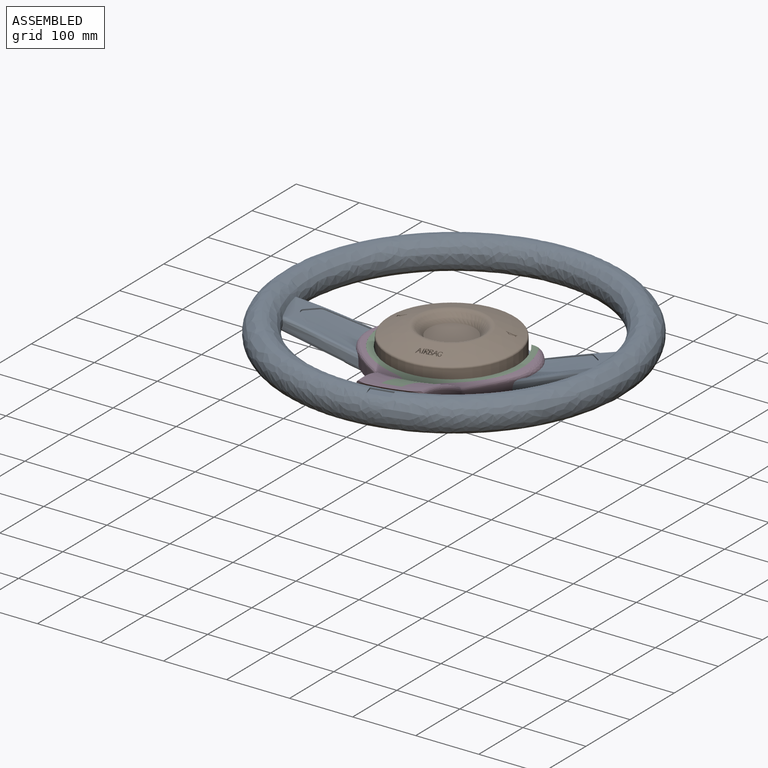
[diagram: assembled view]
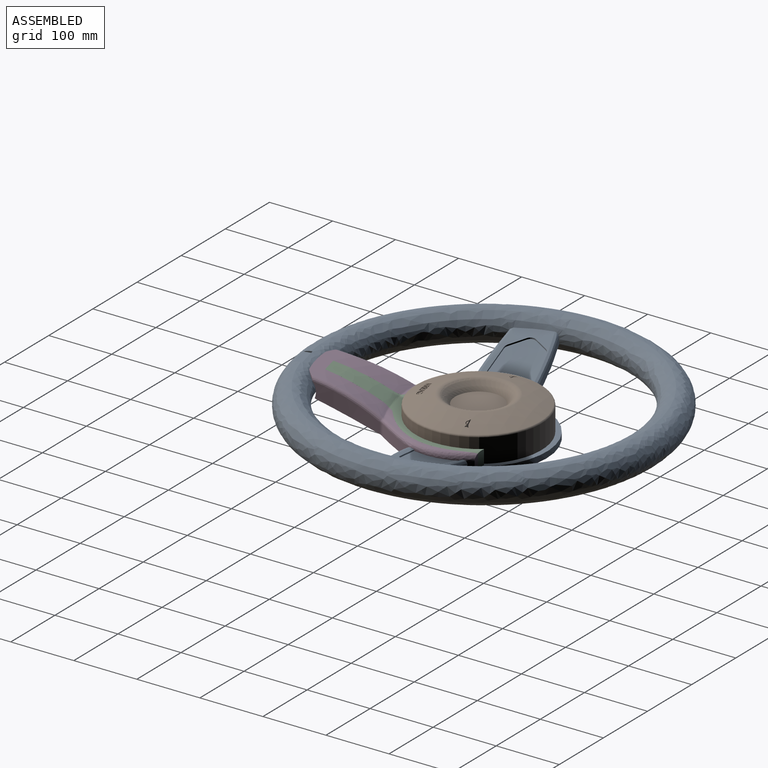
[diagram: assembled view, second angle]
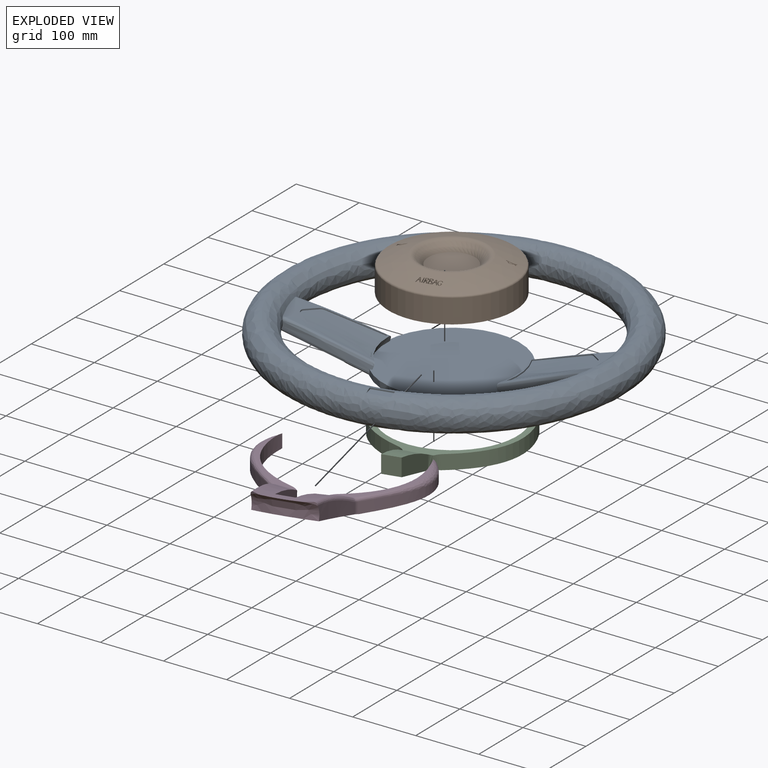
[diagram: exploded view]
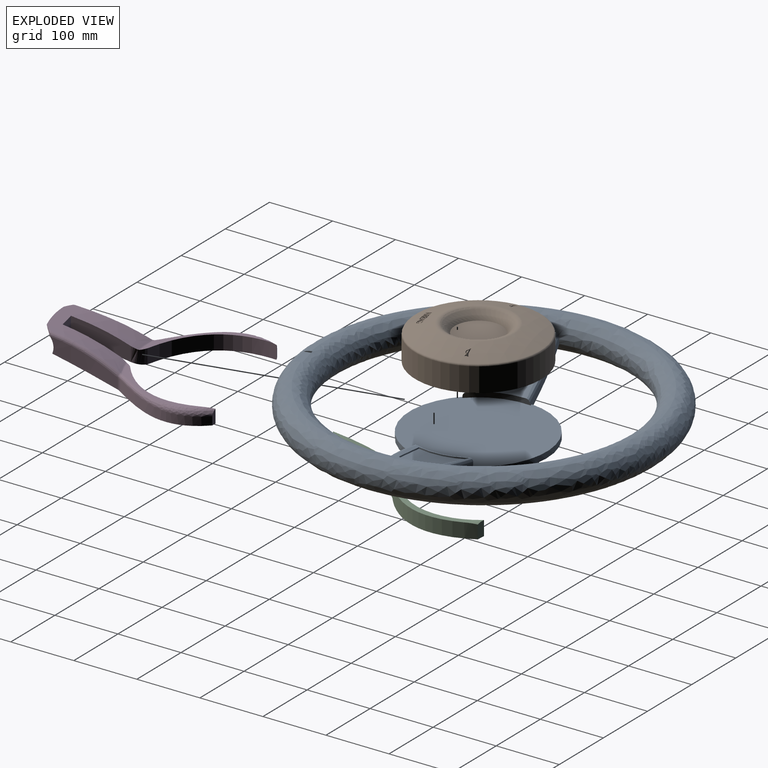
[diagram: exploded view, second angle]
ASSEMBLY  parts=4 mates=3
PART A: 53 faces, bbox 1106.1x606.1x87.3 mm
  f0: bspline ~120.94x81.5mm, area 6432.6mm2, adj f7,f8,f9,f10,f11,f12,f13,f14
  f1: bspline ~153.55x109.77mm, area 5.2mm2, adj f2,f3,f18
  f2: bspline ~0.85x0.5mm, area 0.1mm2, adj f1,f3,f18
  f3: bspline ~56.19x19.31mm, area 1.5mm2, adj f1,f2,f18
  f4: bspline ~56.19x19.31mm, area 1.5mm2, adj f5,f6,f18
  f5: bspline ~0.85x0.5mm, area 0.1mm2, adj f4,f6,f18
  f6: bspline ~153.55x109.77mm, area 5.2mm2, adj f4,f5,f18
  f7: cylinder r=10mm len=7.23mm, axis (0,0,1), area 17.9mm2, adj f0,f8,f14,f24
  f8: plane 22.02x16.81mm, normal (-0.81,-0.59,0), area 50.1mm2, adj f0,f7,f9,f24
  f9: cylinder r=10mm len=12.83mm, axis (0,0,1), area 29.1mm2, adj f0,f8,f10,f24
  f10: plane 19.81x19.09mm, normal (-0.72,0.69,0), area 54.7mm2, adj f0,f9,f11,f24
  f11: cylinder r=10mm len=6.33mm, axis (0,0,1), area 14.9mm2, adj f0,f10,f12,f24
  f12: plane 87.48x29.07mm, normal (-0.09,1,0), area 181.7mm2, adj f0,f11,f13,f24
  f13: cylinder r=105mm len=72.89mm, axis (0,0,1), area 158.9mm2, adj f0,f12,f14,f23,f24
  f14: plane 88.31x32.03mm, normal (-0.08,-1,0), area 147.7mm2, adj f0,f7,f13,f23,f24
  f15: plane 13.99x3.38mm, normal (-1,0,0), area 22.4mm2, adj f27,f29,f41,f42
  f16: bspline ~120.94x81.5mm, area 6432.6mm2, adj f30,f31,f32,f33,f34,f35,f36,f37
  f17: bspline ~93.66x23.75mm, area 905.6mm2, adj f22,f23,f24,f25,f26,f39
  f18: plane 217.35x217.35mm, normal (0,0,-1), area 37049.6mm2, adj f1,f2,f3,f4,f5,f6,f40
  f19: bspline ~134.81x42.09mm, area 1059.9mm2, adj f20,f26,f40,f42
  f20: bspline ~153.55x109.77mm, area 8973.5mm2, adj f19,f21,f40,f42
  f21: bspline ~127.15x42.91mm, area 1015.2mm2, adj f20,f22,f40,f42
  f22: bspline ~139.2x59.15mm, area 1299mm2, adj f17,f21,f23,f39,f40,f42
  f23: bspline ~131.18x43.36mm, area 1030.9mm2, adj f13,f14,f17,f22,f24,f42
  f24: bspline ~153.73x100.84mm, area 2756.7mm2, adj f7,f8,f9,f10,f11,f12,f13,f14
  f25: bspline ~139.18x42.58mm, area 1079.7mm2, adj f17,f24,f26,f42
  f26: bspline ~153.52x59.09mm, area 1354.4mm2, adj f17,f19,f25,f39,f40,f42
  f27: plane 35.29x13.87mm, normal (0,0,1), area 468.5mm2, adj f15,f28,f29,f41,f43
  f28: plane 13.92x3.3mm, normal (1,0,0), area 22.4mm2, adj f27,f41,f43,f52
  f29: bspline ~548.72x263.49mm, area 66463mm2, adj f15,f27,f42,f43
  f30: plane 22.02x16.81mm, normal (0.81,-0.59,0), area 49.9mm2, adj f16,f31,f36,f48
  f31: cylinder r=10mm len=12.83mm, axis (0,0,1), area 29.1mm2, adj f16,f30,f32,f48
  f32: plane 19.81x19.09mm, normal (0.72,0.69,0), area 54.7mm2, adj f16,f31,f33,f48
  f33: cylinder r=10mm len=6.33mm, axis (0,0,1), area 14.9mm2, adj f16,f32,f34,f48
  f34: plane 87.48x29.07mm, normal (0.09,1,0), area 181.8mm2, adj f16,f33,f35,f48
  f35: cylinder r=105mm len=72.89mm, axis (0,0,1), area 157.2mm2, adj f16,f34,f37,f48,f49
  f36: cylinder r=10mm len=7.23mm, axis (0,0,1), area 17.9mm2, adj f16,f30,f37,f48
  f37: plane 88.31x32.02mm, normal (0.08,-1,0), area 221mm2, adj f16,f35,f36,f48,f49
  f38: bspline ~93.66x23.75mm, area 905.6mm2, adj f39,f46,f47,f48,f49,f50
  f39: plane 217.43x210.32mm, normal (0,0,1), area 36376.6mm2, adj f17,f22,f26,f38,f40,f46,f50
  f40: cylinder r=108.61mm len=217.23mm, axis (0,0,1), area 4705.1mm2, adj f18,f19,f20,f21,f22,f26,f39,f44
  f41: plane 35.98x3.26mm, normal (0,-1,0), area 78.2mm2, adj f15,f27,f28,f42,f52
  f42: bspline ~500.17x500.17mm, area 57110mm2, adj f15,f19,f20,f21,f22,f23,f24,f25
  f43: bspline ~601.67x601.67mm, area 66461.2mm2, adj f27,f28,f29,f52
  f44: bspline ~153.55x109.77mm, area 8973.5mm2, adj f40,f45,f51,f52
  f45: bspline ~131.99x41.43mm, area 1059.9mm2, adj f40,f44,f46,f52
  f46: bspline ~153.52x59.09mm, area 1354.4mm2, adj f38,f39,f40,f45,f47,f52
  f47: bspline ~139.18x42.58mm, area 1079.7mm2, adj f38,f46,f48,f52
  f48: bspline ~153.73x100.84mm, area 2756.7mm2, adj f30,f31,f32,f33,f34,f35,f36,f37
  f49: bspline ~132.75x44.13mm, area 1030.9mm2, adj f35,f37,f38,f48,f50,f52
  f50: bspline ~128.87x47.4mm, area 1300.1mm2, adj f38,f39,f40,f49,f51,f52
  f51: bspline ~127.15x42.91mm, area 1015.2mm2, adj f40,f44,f50,f52
  f52: bspline ~500.17x500.17mm, area 57109.6mm2, adj f28,f41,f42,f43,f44,f45,f46,f47
PART B: 112 faces, bbox 216.5x216.5x60 mm
  f0: torus R=97mm, axis (0,0,-1), area 2216.8mm2, adj f6,f7
  f1: cylinder r=1mm len=8.06mm, axis (0,0,1), area 9.6mm2, adj f7,f52,f53,f56
  f2: cylinder r=1mm len=9.5mm, axis (0,0,1), area 14.6mm2, adj f7,f50,f51,f56
  f3: cylinder r=1mm len=9.5mm, axis (0,0,1), area 14.6mm2, adj f42,f44,f45,f48
  f4: torus R=54.58mm, axis (0,0,1), area 3014.8mm2, adj f5,f7
  f5: bspline ~95.43x95.35mm, area 4308.1mm2, adj f4,f9
  f6: cylinder r=100mm len=200mm, axis (0,0,1), area 23870.8mm2, adj f0,f8
  f7: sphere r=260mm, area 20865.3mm2, adj f0,f1,f2,f4,f10,f11,f12,f13
  f8: plane 200x200mm, normal (0,0,-1), area 31415.9mm2, adj f6
  f9: plane 74x74mm, normal (0,0,1), area 4300.8mm2, adj f5
  f10: plane 6.45x1.27mm, normal (0,1,0), area 8.1mm2, adj f7,f11,f17,f18
  f11: plane 9.51x9.51mm, normal (0.95,-0.31,0), area 79.6mm2, adj f7,f10,f12,f18
  f12: plane 9.58x1.57mm, normal (0,-1,0), area 14.9mm2, adj f7,f11,f13,f18
  f13: plane 9.59x9.5mm, normal (-0.95,-0.31,0), area 82.4mm2, adj f7,f12,f14,f18
  f14: plane 6.83x1.27mm, normal (0,1,0), area 8.6mm2, adj f7,f13,f15,f18
  f15: plane 7.82x3.52mm, normal (0.93,0.38,0), area 27.7mm2, adj f7,f14,f16,f18
  f16: plane 7.82x2.42mm, normal (0,1,0), area 18.8mm2, adj f7,f15,f17,f18
  f17: plane 7.67x3.52mm, normal (-0.93,0.38,0), area 26.8mm2, adj f7,f10,f16,f18
  f18: plane 9.5x7.83mm, normal (0,0,1), area 29.1mm2, adj f10,f11,f12,f13,f14,f15,f16,f17
  f19: plane 9.03x2.51mm, normal (0.95,0.3,0), area 22.8mm2, adj f18,f20,f21,f22
  f20: plane 8.32x1.57mm, normal (0,-1,0), area 13mm2, adj f18,f19,f21,f22
  f21: plane 9.03x2.51mm, normal (-0.95,0.3,0), area 22.7mm2, adj f18,f19,f20,f22
  f22: sphere r=260mm, area 2.1mm2, adj f19,f20,f21
  f23: plane 9.83x1.3mm, normal (0,-1,0), area 12.8mm2, adj f7,f24,f26,f27
  f24: plane 9.83x9.5mm, normal (-1,0,0), area 79.8mm2, adj f7,f23,f25,f27
  f25: plane 6.91x1.3mm, normal (0,1,0), area 9mm2, adj f7,f24,f26,f27
  f26: plane 9.78x9.5mm, normal (1,0,0), area 79.4mm2, adj f7,f23,f25,f27
  f27: plane 9.5x1.3mm, normal (0,0,1), area 12.4mm2, adj f23,f24,f25,f26
  f28: plane 9.96x3.73mm, normal (0,-1,0), area 37mm2, adj f7,f29,f41,f42
  f29: plane 9.96x1.46mm, normal (-0.71,-0.71,0), area 20.2mm2, adj f7,f28,f30,f42
  f30: cylinder r=1mm len=9.55mm, axis (0,0,1), area 7.4mm2, adj f7,f29,f31,f42
  f31: plane 9.34x0.39mm, normal (-1,0,0), area 3.6mm2, adj f7,f30,f32,f42
  f32: cylinder r=1mm len=9.23mm, axis (0,0,1), area 10.1mm2, adj f7,f31,f33,f42
  f33: plane 8.96x1.65mm, normal (-0.44,0.9,0), area 16.2mm2, adj f7,f32,f34,f42
  f34: plane 8.69x4.51mm, normal (-0.9,-0.44,0), area 40.1mm2, adj f7,f33,f35,f42
  f35: plane 7.3x1.17mm, normal (-1,0,0), area 8.3mm2, adj f7,f34,f36,f42
  f36: plane 6.92x1.43mm, normal (0,1,0), area 9.9mm2, adj f7,f35,f37,f42
  f37: plane 7.86x3.02mm, normal (0.91,0.41,0), area 24.5mm2, adj f7,f36,f38,f42
  f38: plane 7.86x1.53mm, normal (0,1,0), area 12mm2, adj f7,f37,f39,f42
  f39: plane 7.82x2.97mm, normal (-1,0,0), area 21.8mm2, adj f7,f38,f40,f42
  f40: plane 6.86x1.16mm, normal (0,1,0), area 8mm2, adj f7,f39,f41,f42
  f41: plane 9.89x9.88mm, normal (1,0,0), area 82.9mm2, adj f7,f28,f40,f42
  f42: plane 9.93x5.48mm, normal (0,0,1), area 35.4mm2, adj f3,f28,f29,f30,f31,f32,f33,f34
  f43: plane 9.56x2.11mm, normal (0,1,0), area 20.2mm2, adj f42,f44,f47,f48
  f44: plane 9.56x0.22mm, normal (0.71,0.71,0), area 2.9mm2, adj f3,f42,f43,f48
  f45: plane 9.08x0.22mm, normal (0.71,-0.71,0), area 2.8mm2, adj f3,f42,f46,f48
  f46: plane 9.02x2.11mm, normal (0,-1,0), area 19mm2, adj f42,f45,f47,f48
  f47: plane 9.52x1.85mm, normal (-1,0,0), area 17.1mm2, adj f42,f43,f46,f48
  f48: sphere r=260mm, area 4.7mm2, adj f3,f43,f44,f45,f46,f47
  f49: plane 9.98x3.72mm, normal (0,-1,0), area 37.1mm2, adj f7,f50,f55,f56
  f50: plane 9.97x1.55mm, normal (-0.71,-0.71,0), area 21.4mm2, adj f2,f7,f49,f56
  f51: plane 9.08x1.55mm, normal (-0.71,0.71,0), area 19.4mm2, adj f2,f7,f52,f56
  f52: plane 8.63x1.77mm, normal (-0.71,-0.71,0), area 20.9mm2, adj f1,f7,f51,f56
  f53: plane 7.7x2.48mm, normal (-0.91,0.42,0), area 19.9mm2, adj f1,f7,f54,f56
  f54: plane 6.94x4.55mm, normal (0,1,0), area 31.6mm2, adj f7,f53,f55,f56
  f55: plane 9.98x9.89mm, normal (1,0,0), area 84mm2, adj f7,f49,f54,f56
  f56: plane 9.89x5.78mm, normal (0,0,1), area 35.1mm2, adj f1,f2,f49,f50,f51,f52,f53,f54
  f57: plane 9.59x2.09mm, normal (0,1,0), area 20.1mm2, adj f56,f58,f61,f67
  f58: plane 9.59x0.92mm, normal (0.71,0.71,0), area 12.3mm2, adj f56,f57,f59,f67
  f59: plane 9.31x0.92mm, normal (0.71,-0.71,0), area 12mm2, adj f56,f58,f60,f67
  f60: plane 9.05x2.09mm, normal (0,-1,0), area 18.9mm2, adj f56,f59,f61,f67
  f61: plane 9.59x1.85mm, normal (-1,0,0), area 17.2mm2, adj f56,f57,f60,f67
  f62: plane 8.3x2.09mm, normal (0,1,0), area 17.3mm2, adj f56,f63,f66,f68
  f63: plane 8.29x1.38mm, normal (0.63,0.77,0), area 14.4mm2, adj f56,f62,f64,f68
  f64: plane 7.92x1.99mm, normal (0.91,-0.42,0), area 16.6mm2, adj f56,f63,f65,f68
  f65: plane 7.31x2.56mm, normal (0,-1,0), area 18.7mm2, adj f56,f64,f66,f68
  f66: plane 8.3x3.12mm, normal (-1,0,0), area 24.3mm2, adj f56,f62,f65,f68
  f67: sphere r=260mm, area 4.9mm2, adj f57,f58,f59,f60,f61
  f68: sphere r=260mm, area 9.6mm2, adj f62,f63,f64,f65,f66
  f69: plane 9.75x9.5mm, normal (0.95,-0.31,0), area 83.5mm2, adj f7,f70,f76,f77
  f70: plane 9.74x1.57mm, normal (0,-1,0), area 15.2mm2, adj f7,f69,f71,f77
  f71: plane 9.71x9.51mm, normal (-0.95,-0.31,0), area 82mm2, adj f7,f70,f72,f77
  f72: plane 6.68x1.27mm, normal (0,1,0), area 8.4mm2, adj f7,f71,f73,f77
  f73: plane 7.88x3.52mm, normal (0.93,0.38,0), area 27.7mm2, adj f7,f72,f74,f77
  f74: plane 7.95x2.42mm, normal (0,1,0), area 19.2mm2, adj f7,f73,f75,f77
  f75: plane 7.95x3.52mm, normal (-0.93,0.38,0), area 28.1mm2, adj f7,f74,f76,f77
  f76: plane 6.88x1.27mm, normal (0,1,0), area 8.7mm2, adj f7,f69,f75,f77
  f77: plane 9.5x7.83mm, normal (0,0,1), area 29.1mm2, adj f69,f70,f71,f72,f73,f74,f75,f76
  f78: plane 9.21x2.51mm, normal (-0.95,0.3,0), area 23.2mm2, adj f77,f79,f80,f81
  f79: plane 9.21x2.51mm, normal (0.95,0.3,0), area 23.2mm2, adj f77,f78,f80,f81
  f80: plane 8.47x1.57mm, normal (0,-1,0), area 13.2mm2, adj f77,f78,f79,f81
  f81: sphere r=260mm, area 2.1mm2, adj f78,f79,f80
  f82: bspline ~14.82x11.15mm, area 171.2mm2, adj f7,f83,f88,f89
  f83: plane 8.72x0.89mm, normal (-0.45,0.89,0), area 8.7mm2, adj f7,f82,f84,f89
  f84: bspline ~9.23x7.4mm, area 127.6mm2, adj f7,f83,f85,f89
  f85: plane 7.68x1.42mm, normal (0,1,0), area 10.8mm2, adj f7,f84,f86,f89
  f86: plane 8.01x1.07mm, normal (1,0,0), area 8.4mm2, adj f7,f85,f87,f89
  f87: plane 8.01x2.37mm, normal (0,-1,0), area 18.8mm2, adj f7,f86,f88,f89
  f88: plane 7.86x1.38mm, normal (-1,0,0), area 10.6mm2, adj f7,f82,f87,f89
  f89: plane 11.97x8mm, normal (0,0,1), area 21.2mm2, adj f82,f83,f84,f85,f86,f87,f88
  f90: bspline ~6.78x5.68mm, area 36.9mm2, adj f7,f91,f97,f98
  f91: bspline ~15.53x10mm, area 125.4mm2, adj f7,f90,f92,f98,f99
  f92: plane 10x1.52mm, normal (-1,0,0), area 15.2mm2, adj f91,f93,f98,f99
  f93: bspline ~10x2.73mm, area 26.8mm2, adj f7,f92,f94,f98,f99
  f94: bspline ~9.52x9mm, area 91.6mm2, adj f7,f93,f97,f98
  f95: bspline ~9.28x7.31mm, area 60.1mm2, adj f96,f98,f100
  f96: bspline ~9.28x7.31mm, area 71.6mm2, adj f95,f98,f100
  f97: bspline ~6.77x3.8mm, area 26.6mm2, adj f7,f90,f94,f98
  f98: plane 15.53x8.89mm, normal (0,0,1), area 40.1mm2, adj f90,f91,f92,f93,f94,f95,f96,f97
  f99: plane 1.53x0.84mm, normal (0,0,-1), area 1mm2, adj f7,f91,f92,f93
  f100: sphere r=260mm, area 0mm2, adj f95,f96
  f101: bspline ~15.53x10mm, area 125.4mm2, adj f7,f102,f108,f109,f110
  f102: bspline ~6.78x5.68mm, area 36.9mm2, adj f7,f101,f103,f109
  f103: bspline ~6.77x3.8mm, area 26.6mm2, adj f7,f102,f104,f109
  f104: bspline ~9.52x9mm, area 91.6mm2, adj f7,f103,f105,f109
  f105: bspline ~10x2.73mm, area 26.8mm2, adj f7,f104,f108,f109,f110
  f106: bspline ~9.28x7.31mm, area 71.6mm2, adj f107,f109,f111
  f107: bspline ~9.28x7.31mm, area 60.1mm2, adj f106,f109,f111
  f108: plane 10x1.52mm, normal (1,0,0), area 15.2mm2, adj f101,f105,f109,f110
  f109: plane 15.53x8.89mm, normal (0,0,1), area 40.1mm2, adj f101,f102,f103,f104,f105,f106,f107,f108
  f110: plane 1.53x0.84mm, normal (0,0,-1), area 1mm2, adj f7,f101,f105,f108
  f111: sphere r=260mm, area 0mm2, adj f106,f107
PART C: 17 faces, bbox 273.3x291.8x68.1 mm
  f0: cylinder r=102.5mm len=205mm, axis (0,0,-1), area 9421.3mm2, adj f8,f10,f14,f15
  f1: bspline ~150.19x103.69mm, area 4270.9mm2, adj f2,f10,f13,f14,f15
  f2: bspline ~28.55x18.4mm, area 501mm2, adj f1,f3,f9,f10,f11,f15,f16
  f3: plane 83.07x53.99mm, normal (1,-0.04,0), area 2274.9mm2, adj f2,f4,f9,f16
  f4: plane 29.92x29.4mm, normal (0,-1,0), area 807.5mm2, adj f3,f7,f9,f16
  f5: bspline ~150.19x103.69mm, area 4270.9mm2, adj f6,f8,f10,f12,f15
  f6: bspline ~28.49x18.4mm, area 500.2mm2, adj f5,f7,f9,f10,f11,f15,f16
  f7: plane 83.03x53.94mm, normal (-1,-0.04,0), area 2272mm2, adj f4,f6,f9,f16
  f8: plane 23.21x12.79mm, normal (-0.27,0.96,0), area 296.2mm2, adj f0,f5,f10,f12,f15
  f9: plane 100.91x59.32mm, normal (0,-0.29,-0.96), area 3584mm2, adj f2,f3,f4,f6,f7,f10
  f10: plane 249.97x154.29mm, normal (0,0,-1), area 4159mm2, adj f0,f1,f2,f5,f6,f8,f9,f14
  f11: bspline ~45.36x3.72mm, area 111.1mm2, adj f2,f6,f15,f16
  f12: bspline ~55.16x34.51mm, area 68.3mm2, adj f5,f8,f15
  f13: bspline ~55.16x34.51mm, area 68.3mm2, adj f1,f14,f15
  f14: plane 23.19x12.78mm, normal (0.27,0.96,0), area 296.2mm2, adj f0,f1,f10,f13,f15
  f15: plane 248.48x167.25mm, normal (0,0,1), area 4390.1mm2, adj f0,f1,f2,f5,f6,f8,f11,f12
  f16: bspline ~113.03x71.68mm, area 3180.1mm2, adj f2,f3,f4,f6,f7,f11
PART D: 46 faces, bbox 300.4x296.2x67.9 mm
  f0: bspline ~6.28x6.22mm, area 11.9mm2, adj f1,f43,f44,f45
  f1: bspline ~99.34x54.32mm, area 2253.4mm2, adj f0,f2,f38,f39,f40,f41,f42,f43
  f2: bspline ~15.01x8.79mm, area 115mm2, adj f1,f3,f38,f43
  f3: bspline ~135.79x42.45mm, area 1701.9mm2, adj f2,f4,f38,f39,f43,f44
  f4: bspline ~125.08x71.68mm, area 4153.9mm2, adj f3,f5,f6,f7,f15,f16,f17,f18
  f5: plane 28.71x28.19mm, normal (0,1,0), area 807.5mm2, adj f4,f6,f37,f41
  f6: plane 82.49x53.41mm, normal (-1,0.04,0), area 2274.9mm2, adj f4,f5,f7,f41
  f7: bspline ~28.55x18.4mm, area 501mm2, adj f4,f6,f8,f13,f14,f15,f41
  f8: plane 140.52x100.07mm, normal (0,0,1), area 1058.7mm2, adj f7,f9,f12,f14,f15,f16,f44
  f9: bspline ~159.54x68.63mm, area 1969.2mm2, adj f8,f10,f11,f12,f14
  f10: bspline ~148.95x87.08mm, area 2700.8mm2, adj f9,f11,f13,f42
  f11: plane 23.61x8.75mm, normal (0.27,0.96,0), area 126.7mm2, adj f9,f10,f13,f14
  f12: torus R=15mm, axis (0,0,1), area 27mm2, adj f8,f9,f42,f45
  f13: plane 150.76x105.03mm, normal (0,0,-1), area 2220mm2, adj f7,f10,f11,f14,f41
  f14: bspline ~150.19x103.69mm, area 4270.9mm2, adj f7,f8,f9,f11,f13
  f15: bspline ~14.28x4.3mm, area 34.2mm2, adj f4,f7,f8,f16
  f16: bspline ~2.57x0.71mm, area 0.8mm2, adj f4,f8,f15,f44
  f17: bspline ~21.81x1.88mm, area 0mm2, adj f4,f40
  f18: bspline ~136.81x42.6mm, area 1653.4mm2, adj f4,f19,f31,f32,f33,f34
  f19: bspline ~46.68x25.79mm, area 432.7mm2, adj f18,f20,f30,f34
  f20: bspline ~99.34x54.32mm, area 2257.9mm2, adj f19,f21,f30,f32,f33,f34,f40,f41
  f21: cylinder r=10mm len=18.83mm, axis (0,0,-1), area 107.5mm2, adj f20,f22,f23,f29,f41
  f22: bspline ~6.48x6.33mm, area 23mm2, adj f21,f23,f30,f31
  f23: torus R=15mm, axis (0,0,1), area 27.4mm2, adj f21,f22,f24,f28
  f24: plane 140.68x100.19mm, normal (0,0,1), area 1089.6mm2, adj f23,f25,f28,f31,f35,f36
  f25: bspline ~150.19x103.69mm, area 4270.9mm2, adj f24,f26,f27,f28,f36
  f26: plane 23.6x8.74mm, normal (-0.27,0.96,0), area 126.7mm2, adj f25,f27,f28,f29
  f27: plane 150.76x105.03mm, normal (0,0,-1), area 2220mm2, adj f25,f26,f29,f36,f41
  f28: bspline ~159.54x68.63mm, area 1968.5mm2, adj f23,f24,f25,f26,f29
  f29: bspline ~148.95x87.08mm, area 2701.5mm2, adj f21,f26,f27,f28
  f30: bspline ~6.32x6.31mm, area 12.9mm2, adj f19,f20,f22,f31
  f31: bspline ~21.57x7.23mm, area 55.1mm2, adj f18,f22,f24,f30,f35
  f32: bspline ~17.85x12.1mm, area 41.4mm2, adj f18,f20,f33,f40
  f33: bspline ~52.35x17.81mm, area 411.5mm2, adj f18,f20,f32,f34
  f34: bspline ~12.53x9.12mm, area 94.3mm2, adj f18,f19,f20,f33
  f35: bspline ~15.39x4.44mm, area 37.5mm2, adj f4,f24,f31,f36
  f36: bspline ~28.49x18.4mm, area 500.2mm2, adj f4,f24,f25,f27,f35,f37,f41
  f37: plane 82.49x53.4mm, normal (1,0.04,0), area 2272mm2, adj f4,f5,f36,f41
  f38: bspline ~24.38x9.83mm, area 168.2mm2, adj f1,f2,f3,f39
  f39: bspline ~17.79x11.88mm, area 38.8mm2, adj f1,f3,f38,f40
  f40: bspline ~102.12x32mm, area 3179.5mm2, adj f1,f4,f17,f20,f32,f39,f41
  f41: plane 124.58x108.55mm, normal (0,-0.29,-0.96), area 7945.2mm2, adj f1,f5,f6,f7,f13,f20,f21,f27
  f42: cylinder r=10mm len=18.86mm, axis (0,0,-1), area 107.6mm2, adj f1,f10,f12,f41,f45
  f43: bspline ~70.91x33.71mm, area 654mm2, adj f0,f1,f2,f3
  f44: bspline ~22.28x7.23mm, area 57.4mm2, adj f0,f3,f8,f16,f45
  f45: bspline ~6.5x5.46mm, area 23.3mm2, adj f0,f12,f42,f44
PLACE A rot(axis=(0,0,1),13deg) t=(-207.35,-275.87,102.5)mm
PLACE B rot(axis=(0,0,1),13deg) t=(-209.7,-278.46,102.5)mm
PLACE C rot(axis=(0,0,1),13deg) t=(-209.05,-273.56,102.5)mm
PLACE D rot(axis=(0,0,1),13deg) t=(-209.05,-273.56,102.5)mm
MATE fastened C.f10 <-> A.f39  axis (0,0,-1) through (45.12,-39.82,62.5)mm
MATE fastened B.f0 <-> A.f39  axis (0,0,-1) through (20.63,66.26,62.5)mm
MATE fastened C.f4 <-> D.f5  axis (0.22,-0.97,0) through (67.68,-137.57,107.24)mm
